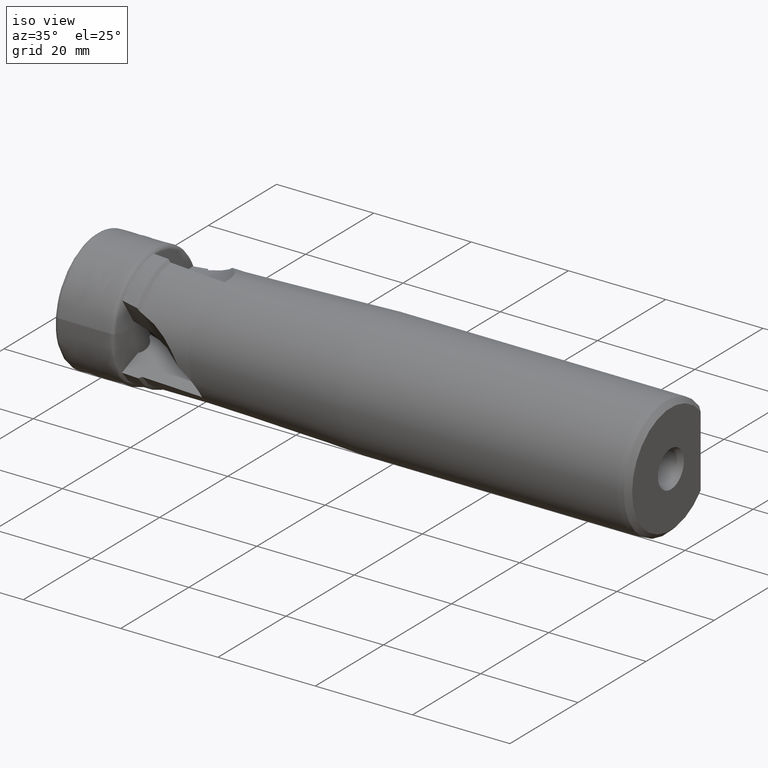
[diagram: clean part render]
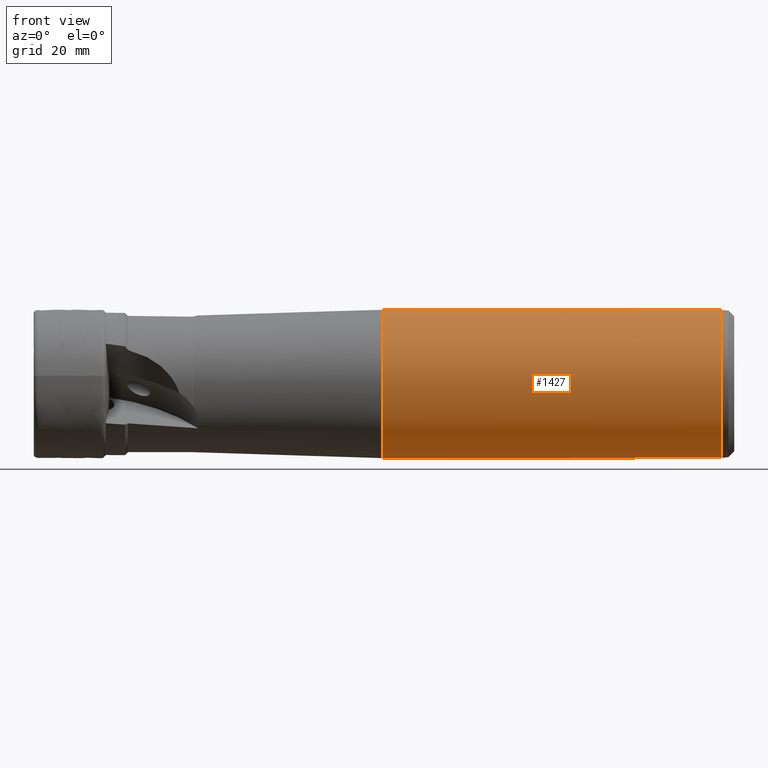
[diagram: tour spotlight — one face highlighted and labeled with its STEP entity id]
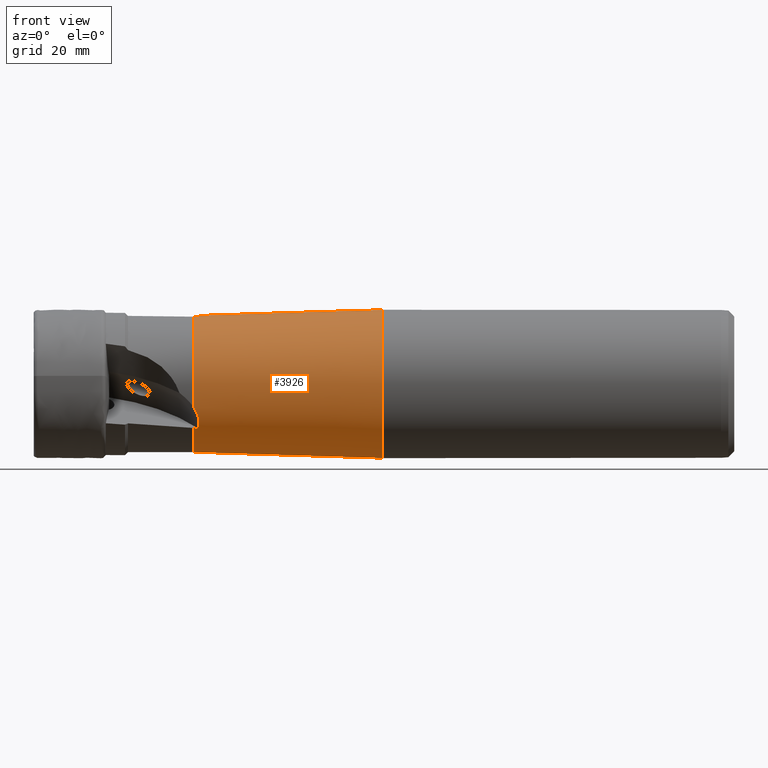
[diagram: tour spotlight — one face highlighted and labeled with its STEP entity id]
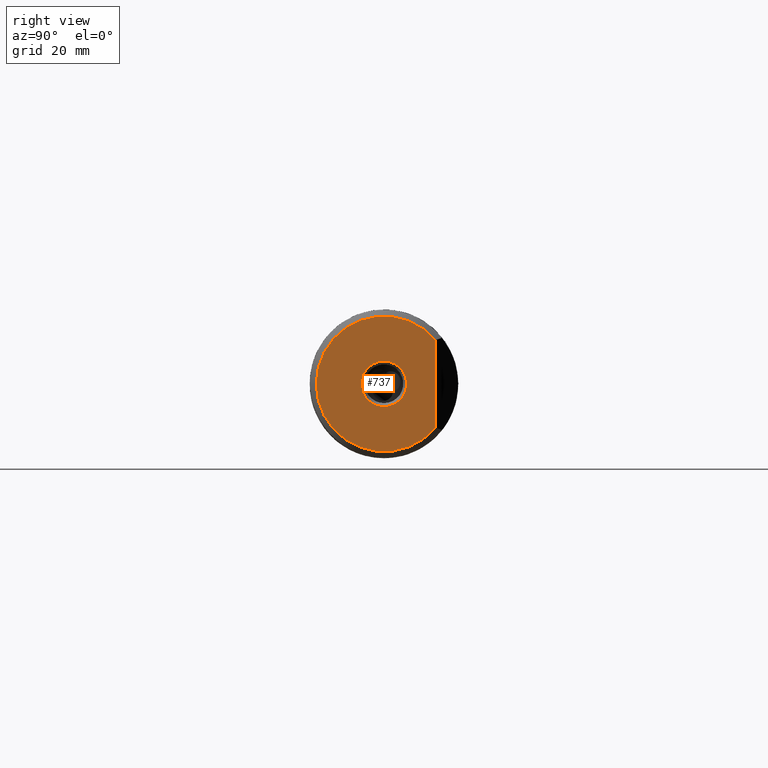
[diagram: tour spotlight — one face highlighted and labeled with its STEP entity id]
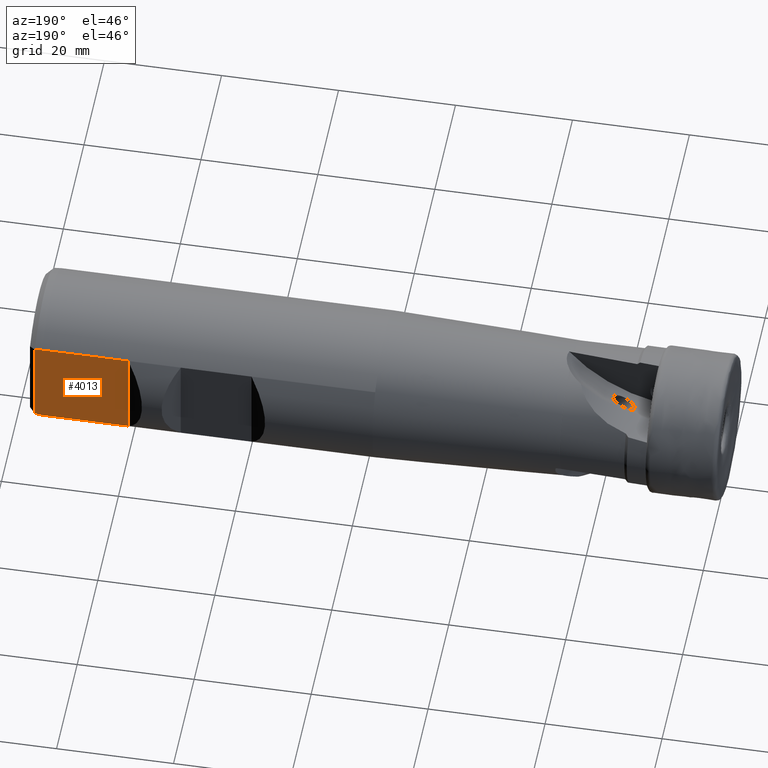
[diagram: tour spotlight — one face highlighted and labeled with its STEP entity id]
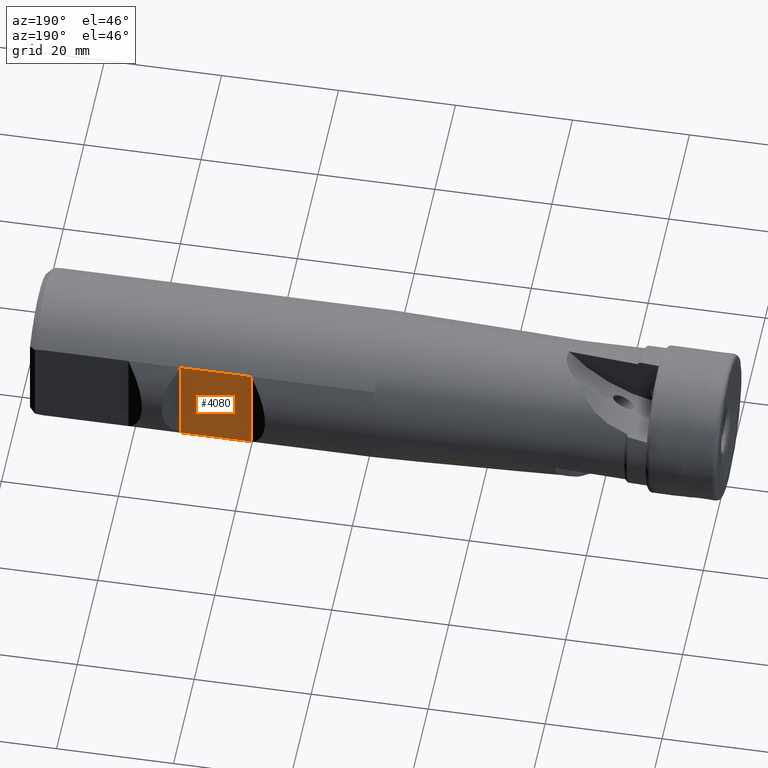
[diagram: tour spotlight — one face highlighted and labeled with its STEP entity id]
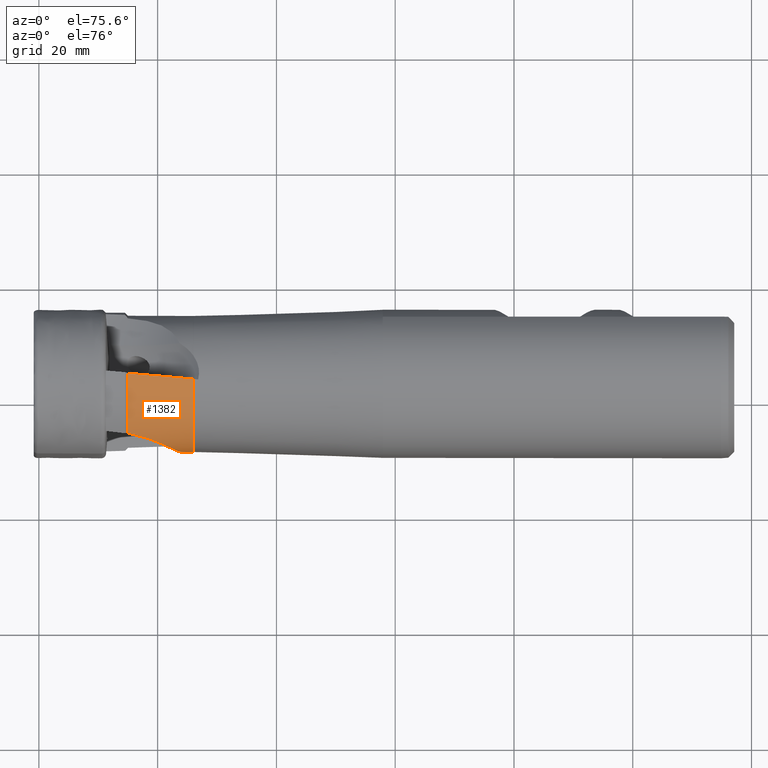
[diagram: tour spotlight — one face highlighted and labeled with its STEP entity id]
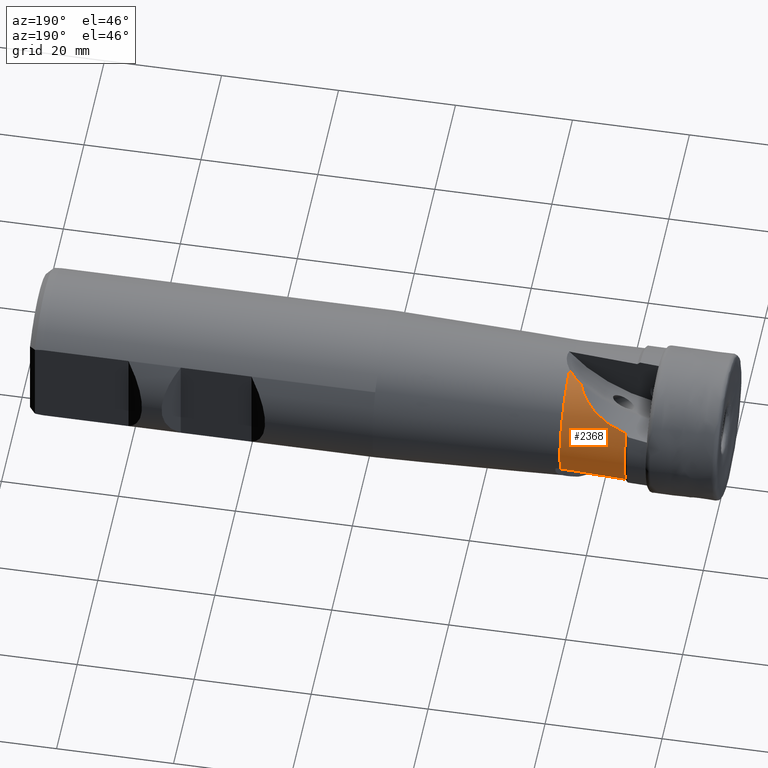
[diagram: tour spotlight — one face highlighted and labeled with its STEP entity id]
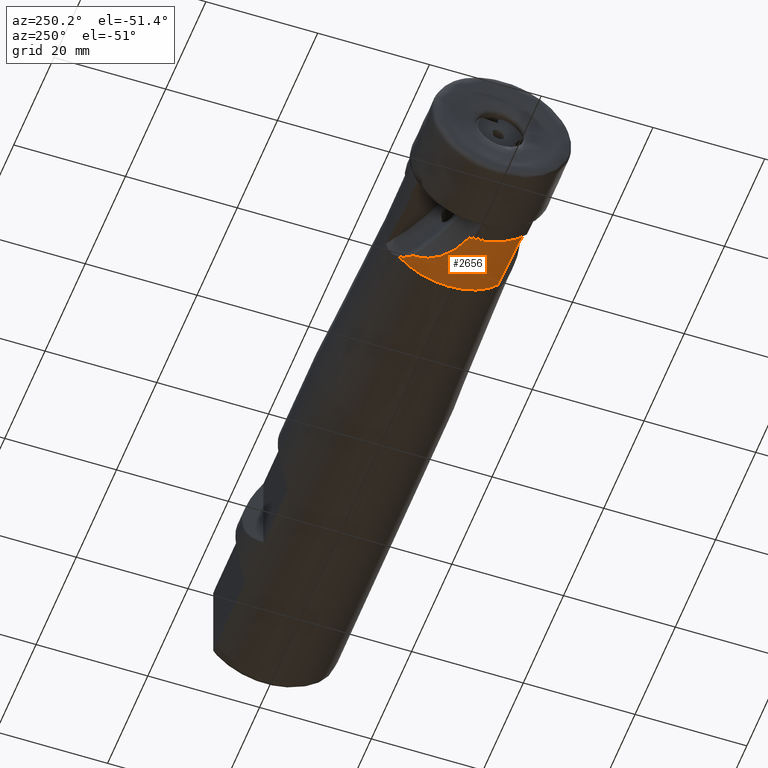
[diagram: tour spotlight — one face highlighted and labeled with its STEP entity id]
A machine part: a face-by-face anatomy tour. The part has 89 B-rep faces; the first image is the clean iso view, then the 8 largest visible faces are spotlighted one at a time (largest first), each with its STEP entity span.

Face 1 — front view, entity #1427. In plain terms, the highlighted cylindrical surface (bore or boss wall) has radius 12.5 mm, axis along (-1, -0, -0).
Definition (entity closure, byte-faithful):
#113 = VECTOR ( 'NONE', #2562, 1000.000000000000000 ) ;
#212 = EDGE_CURVE ( 'NONE', #4228, #2600, #2044, .T. ) ;
#268 = CARTESIAN_POINT ( 'NONE',  ( 75.15282131661439300, 13.59717868338558200, 3.089404912919603500 ) ) ;
#293 = CARTESIAN_POINT ( 'NONE',  ( 91.14999999999999100, 9.700000000000001100, -7.884161337770812000 ) ) ;
#339 = CYLINDRICAL_SURFACE ( 'NONE', #1195, 12.50000000000000000 ) ;
#367 = ORIENTED_EDGE ( 'NONE', *, *, #1459, .T. ) ;
#452 = EDGE_CURVE ( 'NONE', #2538, #3006, #2185, .T. ) ;
#490 = AXIS2_PLACEMENT_3D ( 'NONE', #593, #3572, #1259 ) ;
#544 = FACE_OUTER_BOUND ( 'NONE', #3835, .T. ) ;
#578 = CARTESIAN_POINT ( 'NONE',  ( 96.20282131661441800, 13.59717868338558100, 3.089404912919598200 ) ) ;
#593 = CARTESIAN_POINT ( 'NONE',  ( 114.8499999999999800, 0.0000000000000000000, 0.0000000000000000000 ) ) ;
#822 = ORIENTED_EDGE ( 'NONE', *, *, #4149, .T. ) ;
#841 = ORIENTED_EDGE ( 'NONE', *, *, #2907, .T. ) ;
#879 = CARTESIAN_POINT ( 'NONE',  ( 57.91051569680029600, 0.0000000000000000000, 0.0000000000000000000 ) ) ;
#897 = ORIENTED_EDGE ( 'NONE', *, *, #1822, .T. ) ;
#901 = CARTESIAN_POINT ( 'NONE',  ( 100.0999999999999900, 9.700000000000004600, 7.884161337770803100 ) ) ;
#1024 = CARTESIAN_POINT ( 'NONE',  ( 57.91051569680029600, 0.0000000000000000000, -12.50000000000000000 ) ) ;
#1131 = EDGE_CURVE ( 'NONE', #3006, #4005, #3567, .T. ) ;
#1195 = AXIS2_PLACEMENT_3D ( 'NONE', #1469, #2783, #2196 ) ;
#1205 = VERTEX_POINT ( 'NONE', #2316 ) ;
#1217 = DIRECTION ( 'NONE',  ( 0.0000000000000000000, 0.0000000000000000000, -1.000000000000000000 ) ) ;
#1239 = CARTESIAN_POINT ( 'NONE',  ( 75.15282131661439300, 13.59717868338558200, -3.089404912919600000 ) ) ;
#1259 = DIRECTION ( 'NONE',  ( 0.0000000000000000000, 0.0000000000000000000, 1.000000000000000000 ) ) ;
#1427 = ADVANCED_FACE ( 'NONE', ( #544, #3935, #3834 ), #339, .T. ) ;
#1445 = VERTEX_POINT ( 'NONE', #1024 ) ;
#1446 = DIRECTION ( 'NONE',  ( -1.000000000000000000, -0.0000000000000000000, -0.0000000000000000000 ) ) ;
#1459 = EDGE_CURVE ( 'NONE', #4188, #2538, #2479, .T. ) ;
#1469 = CARTESIAN_POINT ( 'NONE',  ( 0.0000000000000000000, 0.0000000000000000000, 0.0000000000000000000 ) ) ;
#1517 = CARTESIAN_POINT ( 'NONE',  ( 91.14999999999999100, 9.700000000000001100, -7.884161337770812000 ) ) ;
#1519 = VECTOR ( 'NONE', #1582, 1000.000000000000000 ) ;
#1560 = CIRCLE ( 'NONE', #3998, 12.50000000000000000 ) ;
#1582 = DIRECTION ( 'NONE',  ( 1.000000000000000000, 0.0000000000000000000, 0.0000000000000000000 ) ) ;
#1593 = CARTESIAN_POINT ( 'NONE',  ( 95.04717868338556700, 13.59717868338558100, 3.089404912919592000 ) ) ;
#1621 = ORIENTED_EDGE ( 'NONE', *, *, #452, .T. ) ;
#1738 = EDGE_CURVE ( 'NONE', #1445, #1445, #1560, .T. ) ;
#1822 = EDGE_CURVE ( 'NONE', #1205, #4228, #4165, .T. ) ;
#1827 = CARTESIAN_POINT ( 'NONE',  ( 100.0999999999999900, 9.700000000000004600, -7.884161337770803100 ) ) ;
#1862 = CARTESIAN_POINT ( 'NONE',  ( 100.0999999999999900, 9.700000000000004600, 7.884161337770803100 ) ) ;
#1883 = ORIENTED_EDGE ( 'NONE', *, *, #3033, .T. ) ;
#1898 = CARTESIAN_POINT ( 'NONE',  ( -1.051676107310938700E-015, 9.699999999999994000, -7.884161337770820800 ) ) ;
#2044 = LINE ( 'NONE', #3152, #113 ) ;
#2082 = CARTESIAN_POINT ( 'NONE',  ( 91.14999999999999100, 9.700000000000001100, 7.884161337770812000 ) ) ;
#2185 = LINE ( 'NONE', #1898, #1519 ) ;
#2196 = DIRECTION ( 'NONE',  ( 0.0000000000000000000, 0.0000000000000000000, 1.000000000000000000 ) ) ;
#2241 = CARTESIAN_POINT ( 'NONE',  ( 95.04717868338556700, 13.59717868338558100, -3.089404912919596000 ) ) ;
#2316 = CARTESIAN_POINT ( 'NONE',  ( 79.04999999999999700, 9.700000000000001100, 7.884161337770813700 ) ) ;
#2319 = EDGE_LOOP ( 'NONE', ( #2420 ) ) ;
#2376 = LINE ( 'NONE', #3169, #3249 ) ;
#2420 = ORIENTED_EDGE ( 'NONE', *, *, #1738, .T. ) ;
#2479 =( BOUNDED_CURVE ( )  B_SPLINE_CURVE ( 3, ( #901, #578, #2860, #3199 ),
 .UNSPECIFIED., .F., .T. ) 
 B_SPLINE_CURVE_WITH_KNOTS ( ( 4, 4 ),
 ( 5.600687989903614800, 6.965682624455557600 ),
 .UNSPECIFIED. ) 
 CURVE ( )  GEOMETRIC_REPRESENTATION_ITEM ( )  RATIONAL_B_SPLINE_CURVE ( ( 1.000000000000000000, 0.8506666666666667900, 0.8506666666666667900, 1.000000000000000000 ) ) 
 REPRESENTATION_ITEM ( '' )  );
#2521 = VECTOR ( 'NONE', #1446, 1000.000000000000000 ) ;
#2534 = CARTESIAN_POINT ( 'NONE',  ( 79.04999999999999700, 9.700000000000001100, 7.884161337770813700 ) ) ;
#2538 = VERTEX_POINT ( 'NONE', #1827 ) ;
#2562 = DIRECTION ( 'NONE',  ( 1.000000000000000000, 0.0000000000000000000, 0.0000000000000000000 ) ) ;
#2600 = VERTEX_POINT ( 'NONE', #1517 ) ;
#2783 = DIRECTION ( 'NONE',  ( -1.000000000000000000, -0.0000000000000000000, -0.0000000000000000000 ) ) ;
#2842 = EDGE_LOOP ( 'NONE', ( #1883, #841, #897, #3296 ) ) ;
#2860 = CARTESIAN_POINT ( 'NONE',  ( 96.20282131661441800, 13.59717868338558100, -3.089404912919592800 ) ) ;
#2870 =( BOUNDED_CURVE ( )  B_SPLINE_CURVE ( 3, ( #293, #2241, #1593, #3905 ),
 .UNSPECIFIED., .F., .F. ) 
 B_SPLINE_CURVE_WITH_KNOTS ( ( 4, 4 ),
 ( 2.459095336313821700, 3.824089970865764500 ),
 .UNSPECIFIED. ) 
 CURVE ( )  GEOMETRIC_REPRESENTATION_ITEM ( )  RATIONAL_B_SPLINE_CURVE ( ( 1.000000000000000000, 0.8506666666666667900, 0.8506666666666667900, 1.000000000000000000 ) ) 
 REPRESENTATION_ITEM ( '' )  );
#2907 = EDGE_CURVE ( 'NONE', #3404, #1205, #2376, .T. ) ;
#2957 = ORIENTED_EDGE ( 'NONE', *, *, #1131, .T. ) ;
#3006 = VERTEX_POINT ( 'NONE', #3550 ) ;
#3033 = EDGE_CURVE ( 'NONE', #2600, #3404, #2870, .T. ) ;
#3050 = CARTESIAN_POINT ( 'NONE',  ( 114.8499999999999800, 9.699999999999994000, 7.884161337770820800 ) ) ;
#3139 = CARTESIAN_POINT ( 'NONE',  ( -1.051676107310938700E-015, 9.699999999999994000, 7.884161337770820800 ) ) ;
#3152 = CARTESIAN_POINT ( 'NONE',  ( 0.0000000000000000000, 9.700000000000001100, -7.884161337770812000 ) ) ;
#3169 = CARTESIAN_POINT ( 'NONE',  ( 0.0000000000000000000, 9.700000000000001100, 7.884161337770812000 ) ) ;
#3180 = DIRECTION ( 'NONE',  ( 1.000000000000000000, 0.0000000000000000000, 0.0000000000000000000 ) ) ;
#3199 = CARTESIAN_POINT ( 'NONE',  ( 100.0999999999999900, 9.700000000000004600, -7.884161337770803100 ) ) ;
#3249 = VECTOR ( 'NONE', #4171, 1000.000000000000000 ) ;
#3296 = ORIENTED_EDGE ( 'NONE', *, *, #212, .T. ) ;
#3404 = VERTEX_POINT ( 'NONE', #2082 ) ;
#3508 = LINE ( 'NONE', #3139, #2521 ) ;
#3537 = CARTESIAN_POINT ( 'NONE',  ( 79.04999999999999700, 9.700000000000001100, -7.884161337770817300 ) ) ;
#3550 = CARTESIAN_POINT ( 'NONE',  ( 114.8499999999999800, 9.699999999999994000, -7.884161337770820800 ) ) ;
#3567 = CIRCLE ( 'NONE', #490, 12.50000000000000000 ) ;
#3572 = DIRECTION ( 'NONE',  ( -1.000000000000000000, -0.0000000000000000000, -0.0000000000000000000 ) ) ;
#3834 = FACE_OUTER_BOUND ( 'NONE', #2319, .T. ) ;
#3835 = EDGE_LOOP ( 'NONE', ( #2957, #822, #367, #1621 ) ) ;
#3905 = CARTESIAN_POINT ( 'NONE',  ( 91.14999999999999100, 9.700000000000001100, 7.884161337770812000 ) ) ;
#3935 = FACE_BOUND ( 'NONE', #2842, .T. ) ;
#3998 = AXIS2_PLACEMENT_3D ( 'NONE', #879, #3180, #1217 ) ;
#4005 = VERTEX_POINT ( 'NONE', #3050 ) ;
#4149 = EDGE_CURVE ( 'NONE', #4005, #4188, #3508, .T. ) ;
#4165 =( BOUNDED_CURVE ( )  B_SPLINE_CURVE ( 3, ( #2534, #268, #1239, #3537 ),
 .UNSPECIFIED., .F., .T. ) 
 B_SPLINE_CURVE_WITH_KNOTS ( ( 4, 4 ),
 ( 5.600687989903613900, 6.965682624455558500 ),
 .UNSPECIFIED. ) 
 CURVE ( )  GEOMETRIC_REPRESENTATION_ITEM ( )  RATIONAL_B_SPLINE_CURVE ( ( 1.000000000000000000, 0.8506666666666664600, 0.8506666666666664600, 1.000000000000000000 ) ) 
 REPRESENTATION_ITEM ( '' )  );
#4171 = DIRECTION ( 'NONE',  ( -1.000000000000000000, -0.0000000000000000000, -0.0000000000000000000 ) ) ;
#4174 = CARTESIAN_POINT ( 'NONE',  ( 79.04999999999999700, 9.700000000000001100, -7.884161337770817300 ) ) ;
#4188 = VERTEX_POINT ( 'NONE', #1862 ) ;
#4228 = VERTEX_POINT ( 'NONE', #4174 ) ;

Face 2 — front view, entity #3926. In plain terms, the highlighted conical surface has half-angle 1.796 deg.
Definition (entity closure, byte-faithful):
#64 = ORIENTED_EDGE ( 'NONE', *, *, #3452, .T. ) ;
#85 = DIRECTION ( 'NONE',  ( -1.000000000000000000, -0.0000000000000000000, -0.0000000000000000000 ) ) ;
#90 =( BOUNDED_CURVE ( )  B_SPLINE_CURVE ( 3, ( #3707, #1066, #2661, #1730 ),
 .UNSPECIFIED., .F., .T. ) 
 B_SPLINE_CURVE_WITH_KNOTS ( ( 4, 4 ),
 ( 4.517317072188324900, 4.522989198021745600 ),
 .UNSPECIFIED. ) 
 CURVE ( )  GEOMETRIC_REPRESENTATION_ITEM ( )  RATIONAL_B_SPLINE_CURVE ( ( 1.000000000000000000, 0.9999973189175079800, 0.9999973189175079800, 1.000000000000000000 ) ) 
 REPRESENTATION_ITEM ( '' )  );
#110 = CARTESIAN_POINT ( 'NONE',  ( 26.03133763206778900, 2.016279198989966200, 11.32236347895680200 ) ) ;
#217 = CARTESIAN_POINT ( 'NONE',  ( 26.03133763206779200, 8.925250677318146600, -7.252668261055815100 ) ) ;
#228 = CARTESIAN_POINT ( 'NONE',  ( 26.22889793334643500, 1.715927084992845600, 11.38214155241293600 ) ) ;
#231 = CONICAL_SURFACE ( 'NONE', #1507, 12.60000000000000000, 0.03134276350803230600 ) ;
#241 = CARTESIAN_POINT ( 'NONE',  ( 26.79620523868806700, 9.889773287261912000, -5.927111748153024000 ) ) ;
#507 = CARTESIAN_POINT ( 'NONE',  ( 26.81784455521648500, -2.102234149780903400, 11.33180065524483000 ) ) ;
#533 = AXIS2_PLACEMENT_3D ( 'NONE', #3485, #1505, #3817 ) ;
#559 = CARTESIAN_POINT ( 'NONE',  ( 26.97224604283889000, 10.39945579209078200, -4.992486297224235000 ) ) ;
#609 = CARTESIAN_POINT ( 'NONE',  ( 26.81784455521754000, -8.762510163172551700, -7.486488506035929200 ) ) ;
#683 = ORIENTED_EDGE ( 'NONE', *, *, #4200, .T. ) ;
#688 = EDGE_CURVE ( 'NONE', #3735, #3891, #2945, .T. ) ;
#692 = CARTESIAN_POINT ( 'NONE',  ( 61.09999999999998700, 0.0000000000000000000, 0.0000000000000000000 ) ) ;
#785 = CARTESIAN_POINT ( 'NONE',  ( 26.68432782035414900, -10.33113061558315600, -5.109875293251161700 ) ) ;
#793 = VERTEX_POINT ( 'NONE', #2619 ) ;
#839 = VERTEX_POINT ( 'NONE', #2276 ) ;
#848 = AXIS2_PLACEMENT_3D ( 'NONE', #2031, #85, #2351 ) ;
#868 = CARTESIAN_POINT ( 'NONE',  ( 26.68401629255890800, 0.7411293195197136100, 11.50189015463468900 ) ) ;
#878 = CARTESIAN_POINT ( 'NONE',  ( 26.90516700355722800, 10.82160732439488600, -3.988476145133527800 ) ) ;
#879 = CARTESIAN_POINT ( 'NONE',  ( 57.91051569680029600, 0.0000000000000000000, 0.0000000000000000000 ) ) ;
#917 = CARTESIAN_POINT ( 'NONE',  ( 26.29336153503508200, -8.778286922313583300, -7.442612265522385000 ) ) ;
#948 = VERTEX_POINT ( 'NONE', #110 ) ;
#1024 = CARTESIAN_POINT ( 'NONE',  ( 57.91051569680029600, 0.0000000000000000000, -12.50000000000000000 ) ) ;
#1066 = CARTESIAN_POINT ( 'NONE',  ( 26.29336153503496800, 10.90071586328684800, -3.691231812451591900 ) ) ;
#1087 = AXIS2_PLACEMENT_3D ( 'NONE', #3902, #4022, #2355 ) ;
#1098 = CARTESIAN_POINT ( 'NONE',  ( 26.22907893433583500, -10.71509711798557200, -4.205300023507242600 ) ) ;
#1116 = CARTESIAN_POINT ( 'NONE',  ( 26.93920088092640700, -9.826651468881298300, -6.039747243701240700 ) ) ;
#1199 = CARTESIAN_POINT ( 'NONE',  ( 26.93891274825394400, -0.3152119877750572100, 11.53003882657656500 ) ) ;
#1213 = ORIENTED_EDGE ( 'NONE', *, *, #1738, .F. ) ;
#1217 = DIRECTION ( 'NONE',  ( 0.0000000000000000000, 0.0000000000000000000, -1.000000000000000000 ) ) ;
#1279 = EDGE_CURVE ( 'NONE', #2225, #4009, #90, .T. ) ;
#1441 = CARTESIAN_POINT ( 'NONE',  ( 26.95535735706196700, -9.215149300425990100, -6.938473414591294700 ) ) ;
#1445 = VERTEX_POINT ( 'NONE', #1024 ) ;
#1505 = DIRECTION ( 'NONE',  ( -1.000000000000000000, -0.0000000000000000000, -0.0000000000000000000 ) ) ;
#1507 = AXIS2_PLACEMENT_3D ( 'NONE', #692, #3668, #1693 ) ;
#1535 = CARTESIAN_POINT ( 'NONE',  ( 26.95550980234951100, -1.400111561184544900, 11.44995595290762400 ) ) ;
#1560 = CIRCLE ( 'NONE', #3998, 12.50000000000000000 ) ;
#1648 = B_SPLINE_CURVE_WITH_KNOTS ( 'NONE', 3,
 ( #217, #2836, #4183, #2190, #241, #2516, #559, #2853, #878, #3179 ),
 .UNSPECIFIED., .F., .F.,
 ( 4, 2, 2, 2, 4 ),
 ( 3.650986622864814400E-007, 0.001083339516355997900, 0.002166313934049709500, 0.003249288351743420800, 0.004332262769437132000 ),
 .UNSPECIFIED. ) ;
#1693 = DIRECTION ( 'NONE',  ( 0.0000000000000000000, 0.0000000000000000000, -1.000000000000000000 ) ) ;
#1730 = CARTESIAN_POINT ( 'NONE',  ( 26.81784455521767200, 10.93019951027649800, -3.655110555956440100 ) ) ;
#1738 = EDGE_CURVE ( 'NONE', #1445, #1445, #1560, .T. ) ;
#1776 = CARTESIAN_POINT ( 'NONE',  ( 26.81784455521754000, -8.762510163172551700, -7.486488506035929200 ) ) ;
#1787 = ORIENTED_EDGE ( 'NONE', *, *, #2506, .F. ) ;
#1829 = CIRCLE ( 'NONE', #533, 11.50049114420312100 ) ;
#1856 = EDGE_CURVE ( 'NONE', #3891, #793, #1861, .T. ) ;
#1861 =( BOUNDED_CURVE ( )  B_SPLINE_CURVE ( 3, ( #2229, #917, #2571, #609 ),
 .UNSPECIFIED., .F., .F. ) 
 B_SPLINE_CURVE_WITH_KNOTS ( ( 4, 4 ),
 ( 4.517317072188322200, 4.522989198021740300 ),
 .UNSPECIFIED. ) 
 CURVE ( )  GEOMETRIC_REPRESENTATION_ITEM ( )  RATIONAL_B_SPLINE_CURVE ( ( 1.000000000000000000, 0.9999973189175079800, 0.9999973189175079800, 1.000000000000000000 ) ) 
 REPRESENTATION_ITEM ( '' )  );
#1873 = CARTESIAN_POINT ( 'NONE',  ( 26.81784455521648500, -2.102234149780903400, 11.33180065524483000 ) ) ;
#2031 = CARTESIAN_POINT ( 'NONE',  ( 26.03133763206779600, 0.0000000000000000000, 0.0000000000000000000 ) ) ;
#2045 = EDGE_CURVE ( 'NONE', #3035, #2383, #1829, .T. ) ;
#2072 = FACE_BOUND ( 'NONE', #2184, .T. ) ;
#2085 = ORIENTED_EDGE ( 'NONE', *, *, #3915, .F. ) ;
#2184 = EDGE_LOOP ( 'NONE', ( #3235, #2797, #2906, #2085, #683, #1787, #3056, #64, #2702 ) ) ;
#2190 = CARTESIAN_POINT ( 'NONE',  ( 26.68432782035414900, 9.700943635934816500, -6.223727008893782800 ) ) ;
#2225 = VERTEX_POINT ( 'NONE', #3236 ) ;
#2229 = CARTESIAN_POINT ( 'NONE',  ( 26.03133763206779600, -8.786086899809280500, -7.420645089673416600 ) ) ;
#2276 = CARTESIAN_POINT ( 'NONE',  ( 26.81784455521648500, -2.102234149780903400, 11.33180065524483000 ) ) ;
#2278 =( BOUNDED_CURVE ( )  B_SPLINE_CURVE ( 3, ( #4129, #3454, #2468, #507 ),
 .UNSPECIFIED., .F., .T. ) 
 B_SPLINE_CURVE_WITH_KNOTS ( ( 4, 4 ),
 ( 4.517317072188324000, 4.522989198021736700 ),
 .UNSPECIFIED. ) 
 CURVE ( )  GEOMETRIC_REPRESENTATION_ITEM ( )  RATIONAL_B_SPLINE_CURVE ( ( 1.000000000000000000, 0.9999973189175079800, 0.9999973189175079800, 1.000000000000000000 ) ) 
 REPRESENTATION_ITEM ( '' )  );
#2351 = DIRECTION ( 'NONE',  ( 0.0000000000000000000, 0.0000000000000000000, 1.000000000000000000 ) ) ;
#2355 = DIRECTION ( 'NONE',  ( 0.0000000000000000000, 0.0000000000000000000, 1.000000000000000000 ) ) ;
#2383 = VERTEX_POINT ( 'NONE', #2706 ) ;
#2468 = CARTESIAN_POINT ( 'NONE',  ( 26.55553121231606200, -2.079284705985527700, 11.32769350547320300 ) ) ;
#2494 = EDGE_LOOP ( 'NONE', ( #1213 ) ) ;
#2506 = EDGE_CURVE ( 'NONE', #2383, #839, #2278, .T. ) ;
#2510 = CARTESIAN_POINT ( 'NONE',  ( 26.03133763206778900, 2.016279198989966200, 11.32236347895680200 ) ) ;
#2516 = CARTESIAN_POINT ( 'NONE',  ( 26.93920088092640700, 10.23817349715112000, -5.312384521182193200 ) ) ;
#2571 = CARTESIAN_POINT ( 'NONE',  ( 26.55553121231686500, -8.770427989030881800, -7.464560129820584100 ) ) ;
#2619 = CARTESIAN_POINT ( 'NONE',  ( 26.81784455521754000, -8.762510163172551700, -7.486488506035929200 ) ) ;
#2661 = CARTESIAN_POINT ( 'NONE',  ( 26.55553121231688300, 10.91548120501475300, -3.673191406046719900 ) ) ;
#2676 = CARTESIAN_POINT ( 'NONE',  ( 26.03133763206779600, -8.786086899809280500, -7.420645089673416600 ) ) ;
#2684 = B_SPLINE_CURVE_WITH_KNOTS ( 'NONE', 3,
 ( #2510, #228, #2839, #868, #3173, #1199, #3505, #1535, #3844, #1873 ),
 .UNSPECIFIED., .F., .F.,
 ( 4, 2, 2, 2, 4 ),
 ( 3.652314020040032400E-007, 0.001082741655488306600, 0.002165118079574609200, 0.003247494503660912100, 0.004329870927747213700 ),
 .UNSPECIFIED. ) ;
#2702 = ORIENTED_EDGE ( 'NONE', *, *, #1856, .F. ) ;
#2706 = CARTESIAN_POINT ( 'NONE',  ( 26.03133763206779600, -2.033423710220739500, 11.31929699992921600 ) ) ;
#2760 = CARTESIAN_POINT ( 'NONE',  ( 26.40094587851146500, -10.60045472459129100, -4.502088298322129300 ) ) ;
#2797 = ORIENTED_EDGE ( 'NONE', *, *, #2908, .T. ) ;
#2836 = CARTESIAN_POINT ( 'NONE',  ( 26.22907893433585600, 9.123328661913843600, -7.018741244858234500 ) ) ;
#2839 = CARTESIAN_POINT ( 'NONE',  ( 26.40067571412452500, 1.401815319146835400, 11.43123124368323200 ) ) ;
#2853 = CARTESIAN_POINT ( 'NONE',  ( 26.95535735706196700, 10.69358528347873800, -4.325346661147387200 ) ) ;
#2906 = ORIENTED_EDGE ( 'NONE', *, *, #1279, .F. ) ;
#2908 = EDGE_CURVE ( 'NONE', #3735, #4009, #1648, .T. ) ;
#2945 = CIRCLE ( 'NONE', #1087, 11.50049114420312100 ) ;
#3035 = VERTEX_POINT ( 'NONE', #3233 ) ;
#3056 = ORIENTED_EDGE ( 'NONE', *, *, #2045, .F. ) ;
#3085 = CARTESIAN_POINT ( 'NONE',  ( 26.79620523868806000, -10.17413617329238700, -5.424502048652596100 ) ) ;
#3173 = CARTESIAN_POINT ( 'NONE',  ( 26.79581964166751000, 0.3906007775187372300, 11.52324425281843600 ) ) ;
#3179 = CARTESIAN_POINT ( 'NONE',  ( 26.81784455521767200, 10.93019951027649800, -3.655110555956440100 ) ) ;
#3180 = DIRECTION ( 'NONE',  ( 1.000000000000000000, 0.0000000000000000000, 0.0000000000000000000 ) ) ;
#3233 = CARTESIAN_POINT ( 'NONE',  ( 26.03133763206777500, -10.81359400315271900, -3.915032732030978100 ) ) ;
#3235 = ORIENTED_EDGE ( 'NONE', *, *, #688, .F. ) ;
#3236 = CARTESIAN_POINT ( 'NONE',  ( 26.03133763206779600, 10.88590360385398100, -3.709231630067520800 ) ) ;
#3314 = B_SPLINE_CURVE_WITH_KNOTS ( 'NONE', 3,
 ( #4084, #1098, #2760, #785, #3085, #1116, #3418, #1441, #3758, #1776 ),
 .UNSPECIFIED., .F., .F.,
 ( 4, 2, 2, 2, 4 ),
 ( 3.650986622520055100E-007, 0.001083339516355981400, 0.002166313934049710800, 0.003249288351743440300, 0.004332262769437170100 ),
 .UNSPECIFIED. ) ;
#3387 = CARTESIAN_POINT ( 'NONE',  ( 26.81784455521767200, 10.93019951027649800, -3.655110555956440100 ) ) ;
#3418 = CARTESIAN_POINT ( 'NONE',  ( 26.97224604283890400, -9.635511694454656600, -6.342752918540172800 ) ) ;
#3452 = EDGE_CURVE ( 'NONE', #3035, #793, #3314, .T. ) ;
#3454 = CARTESIAN_POINT ( 'NONE',  ( 26.29336153503451400, -2.056347831303142000, 11.32352560919357400 ) ) ;
#3485 = CARTESIAN_POINT ( 'NONE',  ( 26.03133763206779600, 0.0000000000000000000, 0.0000000000000000000 ) ) ;
#3505 = CARTESIAN_POINT ( 'NONE',  ( 26.97216874718812100, -0.6731824621138929900, 11.51610495036164700 ) ) ;
#3544 = CARTESIAN_POINT ( 'NONE',  ( 26.03133763206779200, 8.925250677318146600, -7.252668261055815100 ) ) ;
#3668 = DIRECTION ( 'NONE',  ( 1.000000000000000000, 0.0000000000000000000, 0.0000000000000000000 ) ) ;
#3707 = CARTESIAN_POINT ( 'NONE',  ( 26.03133763206779600, 10.88590360385398100, -3.709231630067520800 ) ) ;
#3735 = VERTEX_POINT ( 'NONE', #3544 ) ;
#3758 = CARTESIAN_POINT ( 'NONE',  ( 26.90516700355721700, -8.992331135027775700, -7.221710863895507900 ) ) ;
#3817 = DIRECTION ( 'NONE',  ( 0.0000000000000000000, 0.0000000000000000000, 1.000000000000000000 ) ) ;
#3821 = FACE_OUTER_BOUND ( 'NONE', #2494, .T. ) ;
#3844 = CARTESIAN_POINT ( 'NONE',  ( 26.90567676715687300, -1.756010072248108700, 11.39883167102845000 ) ) ;
#3891 = VERTEX_POINT ( 'NONE', #2676 ) ;
#3902 = CARTESIAN_POINT ( 'NONE',  ( 26.03133763206779600, 0.0000000000000000000, 0.0000000000000000000 ) ) ;
#3915 = EDGE_CURVE ( 'NONE', #948, #2225, #3922, .T. ) ;
#3922 = CIRCLE ( 'NONE', #848, 11.50049114420312100 ) ;
#3926 = ADVANCED_FACE ( 'NONE', ( #2072, #3821 ), #231, .T. ) ;
#3998 = AXIS2_PLACEMENT_3D ( 'NONE', #879, #3180, #1217 ) ;
#4009 = VERTEX_POINT ( 'NONE', #3387 ) ;
#4022 = DIRECTION ( 'NONE',  ( -1.000000000000000000, -0.0000000000000000000, -0.0000000000000000000 ) ) ;
#4084 = CARTESIAN_POINT ( 'NONE',  ( 26.03133763206777500, -10.81359400315271900, -3.915032732030978100 ) ) ;
#4129 = CARTESIAN_POINT ( 'NONE',  ( 26.03133763206779600, -2.033423710220739500, 11.31929699992921600 ) ) ;
#4183 = CARTESIAN_POINT ( 'NONE',  ( 26.40094587851147200, 9.318680668720077200, -6.767616272249896700 ) ) ;
#4200 = EDGE_CURVE ( 'NONE', #948, #839, #2684, .T. ) ;

Face 3 — right view, entity #737. In plain terms, the highlighted planar face has unit normal (-1, 0, -0).
Definition (entity closure, byte-faithful):
#16 = DIRECTION ( 'NONE',  ( -0.0000000000000000000, -0.0000000000000000000, 1.000000000000000000 ) ) ;
#345 = LINE ( 'NONE', #1624, #2855 ) ;
#407 = CARTESIAN_POINT ( 'NONE',  ( 117.0999999999999900, 11.40000000000000000, 0.0000000000000000000 ) ) ;
#524 = EDGE_CURVE ( 'NONE', #1054, #3931, #345, .T. ) ;
#570 = CARTESIAN_POINT ( 'NONE',  ( 117.0999999999999900, 0.0000000000000000000, 0.0000000000000000000 ) ) ;
#737 = ADVANCED_FACE ( 'NONE', ( #805, #4213 ), #3585, .F. ) ;
#805 = FACE_OUTER_BOUND ( 'NONE', #1158, .T. ) ;
#894 = DIRECTION ( 'NONE',  ( 0.0000000000000000000, 0.0000000000000000000, 1.000000000000000000 ) ) ;
#1054 = VERTEX_POINT ( 'NONE', #3954 ) ;
#1095 = ORIENTED_EDGE ( 'NONE', *, *, #2363, .F. ) ;
#1097 = AXIS2_PLACEMENT_3D ( 'NONE', #570, #2867, #894 ) ;
#1158 = EDGE_LOOP ( 'NONE', ( #1095, #1611 ) ) ;
#1226 = AXIS2_PLACEMENT_3D ( 'NONE', #407, #2719, #2385 ) ;
#1576 = EDGE_LOOP ( 'NONE', ( #2585 ) ) ;
#1611 = ORIENTED_EDGE ( 'NONE', *, *, #524, .T. ) ;
#1624 = CARTESIAN_POINT ( 'NONE',  ( 117.0999999999999900, 8.699999999999995700, -10.00000000000000000 ) ) ;
#1689 = CARTESIAN_POINT ( 'NONE',  ( 117.0999999999999900, 0.0000000000000000000, 3.827350269189631100 ) ) ;
#1703 = DIRECTION ( 'NONE',  ( -1.000000000000000000, -0.0000000000000000000, -0.0000000000000000000 ) ) ;
#2207 = VERTEX_POINT ( 'NONE', #1689 ) ;
#2262 = CIRCLE ( 'NONE', #1097, 3.827350269189631100 ) ;
#2357 = AXIS2_PLACEMENT_3D ( 'NONE', #3681, #1703, #4029 ) ;
#2363 = EDGE_CURVE ( 'NONE', #1054, #3931, #2531, .T. ) ;
#2385 = DIRECTION ( 'NONE',  ( -0.0000000000000000000, 0.0000000000000000000, 1.000000000000000000 ) ) ;
#2531 = CIRCLE ( 'NONE', #2357, 11.40000000000000000 ) ;
#2585 = ORIENTED_EDGE ( 'NONE', *, *, #2929, .T. ) ;
#2689 = CARTESIAN_POINT ( 'NONE',  ( 117.0999999999999900, 8.699999999999995700, 7.366817494685210300 ) ) ;
#2719 = DIRECTION ( 'NONE',  ( -1.000000000000000000, 0.0000000000000000000, -0.0000000000000000000 ) ) ;
#2855 = VECTOR ( 'NONE', #16, 1000.000000000000000 ) ;
#2867 = DIRECTION ( 'NONE',  ( -1.000000000000000000, -0.0000000000000000000, -0.0000000000000000000 ) ) ;
#2929 = EDGE_CURVE ( 'NONE', #2207, #2207, #2262, .T. ) ;
#3585 = PLANE ( 'NONE',  #1226 ) ;
#3681 = CARTESIAN_POINT ( 'NONE',  ( 117.0999999999999900, 0.0000000000000000000, 0.0000000000000000000 ) ) ;
#3931 = VERTEX_POINT ( 'NONE', #2689 ) ;
#3954 = CARTESIAN_POINT ( 'NONE',  ( 117.0999999999999900, 8.699999999999995700, -7.366817494685209400 ) ) ;
#4029 = DIRECTION ( 'NONE',  ( 0.0000000000000000000, 0.0000000000000000000, 1.000000000000000000 ) ) ;
#4213 = FACE_BOUND ( 'NONE', #1576, .T. ) ;

Face 4 — auxiliary view, entity #4013. In plain terms, the highlighted planar face has unit normal (0, -1, 0).
Definition (entity closure, byte-faithful):
#120 = DIRECTION ( 'NONE',  ( 1.084202172485504400E-016, -1.000000000000000000, 0.0000000000000000000 ) ) ;
#250 = CARTESIAN_POINT ( 'NONE',  ( 115.6833756513085400, 9.700000000000004600, 7.778138934283050300 ) ) ;
#272 = CARTESIAN_POINT ( 'NONE',  ( 114.8499999999999800, 9.699999999999994000, -7.884161337770820800 ) ) ;
#313 = ORIENTED_EDGE ( 'NONE', *, *, #1489, .F. ) ;
#428 = CARTESIAN_POINT ( 'NONE',  ( 116.0999999999999900, 9.700000000000004600, -10.00000000000000000 ) ) ;
#452 = EDGE_CURVE ( 'NONE', #2538, #3006, #2185, .T. ) ;
#484 = VERTEX_POINT ( 'NONE', #549 ) ;
#539 = LINE ( 'NONE', #2251, #2173 ) ;
#549 = CARTESIAN_POINT ( 'NONE',  ( 116.0999999999999900, 9.700000000000004600, 7.724635913753276700 ) ) ;
#653 = ORIENTED_EDGE ( 'NONE', *, *, #3088, .T. ) ;
#736 = CARTESIAN_POINT ( 'NONE',  ( 116.0999999999999900, 9.700000000000004600, -7.724635913750230300 ) ) ;
#958 = DIRECTION ( 'NONE',  ( -0.0000000000000000000, -0.0000000000000000000, 1.000000000000000000 ) ) ;
#1193 = LINE ( 'NONE', #2606, #2930 ) ;
#1220 = CARTESIAN_POINT ( 'NONE',  ( 114.8499999999999800, 9.699999999999994000, 7.884161337770820800 ) ) ;
#1434 = EDGE_CURVE ( 'NONE', #484, #4005, #4040, .T. ) ;
#1446 = DIRECTION ( 'NONE',  ( -1.000000000000000000, -0.0000000000000000000, -0.0000000000000000000 ) ) ;
#1489 = EDGE_CURVE ( 'NONE', #3006, #3975, #1720, .T. ) ;
#1519 = VECTOR ( 'NONE', #1582, 1000.000000000000000 ) ;
#1582 = DIRECTION ( 'NONE',  ( 1.000000000000000000, 0.0000000000000000000, 0.0000000000000000000 ) ) ;
#1720 = B_SPLINE_CURVE_WITH_KNOTS ( 'NONE', 3,
 ( #272, #4219, #1904, #2556 ),
 .UNSPECIFIED., .F., .F.,
 ( 4, 4 ),
 ( 0.02309770409454800800, 0.02435779603977665500 ),
 .UNSPECIFIED. ) ;
#1743 = DIRECTION ( 'NONE',  ( 1.000000000000000000, 1.084202172485504400E-016, 0.0000000000000000000 ) ) ;
#1827 = CARTESIAN_POINT ( 'NONE',  ( 100.0999999999999900, 9.700000000000004600, -7.884161337770803100 ) ) ;
#1862 = CARTESIAN_POINT ( 'NONE',  ( 100.0999999999999900, 9.700000000000004600, 7.884161337770803100 ) ) ;
#1898 = CARTESIAN_POINT ( 'NONE',  ( -1.051676107310938700E-015, 9.699999999999994000, -7.884161337770820800 ) ) ;
#1904 = CARTESIAN_POINT ( 'NONE',  ( 115.6833825353748000, 9.700000000000004600, -7.778138050229250300 ) ) ;
#2173 = VECTOR ( 'NONE', #3589, 1000.000000000000000 ) ;
#2185 = LINE ( 'NONE', #1898, #1519 ) ;
#2251 = CARTESIAN_POINT ( 'NONE',  ( 116.0999999999999900, 9.700000000000004600, -10.00000000000000000 ) ) ;
#2268 = EDGE_CURVE ( 'NONE', #3975, #484, #539, .T. ) ;
#2521 = VECTOR ( 'NONE', #1446, 1000.000000000000000 ) ;
#2523 = CARTESIAN_POINT ( 'NONE',  ( 116.0999999999999900, 9.700000000000004600, 7.724635913753276700 ) ) ;
#2538 = VERTEX_POINT ( 'NONE', #1827 ) ;
#2556 = CARTESIAN_POINT ( 'NONE',  ( 116.0999999999999900, 9.700000000000004600, -7.724635913750230300 ) ) ;
#2606 = CARTESIAN_POINT ( 'NONE',  ( 100.0999999999999900, 9.700000000000004600, -10.00000000000000000 ) ) ;
#2610 = AXIS2_PLACEMENT_3D ( 'NONE', #428, #120, #1743 ) ;
#2834 = FACE_OUTER_BOUND ( 'NONE', #3790, .T. ) ;
#2930 = VECTOR ( 'NONE', #958, 1000.000000000000000 ) ;
#3006 = VERTEX_POINT ( 'NONE', #3550 ) ;
#3050 = CARTESIAN_POINT ( 'NONE',  ( 114.8499999999999800, 9.699999999999994000, 7.884161337770820800 ) ) ;
#3088 = EDGE_CURVE ( 'NONE', #2538, #4188, #1193, .T. ) ;
#3139 = CARTESIAN_POINT ( 'NONE',  ( -1.051676107310938700E-015, 9.699999999999994000, 7.884161337770820800 ) ) ;
#3186 = CARTESIAN_POINT ( 'NONE',  ( 115.2667078385156900, 9.700000000000004600, 7.831307543858778300 ) ) ;
#3254 = ORIENTED_EDGE ( 'NONE', *, *, #2268, .F. ) ;
#3508 = LINE ( 'NONE', #3139, #2521 ) ;
#3550 = CARTESIAN_POINT ( 'NONE',  ( 114.8499999999999800, 9.699999999999994000, -7.884161337770820800 ) ) ;
#3589 = DIRECTION ( 'NONE',  ( -0.0000000000000000000, -0.0000000000000000000, 1.000000000000000000 ) ) ;
#3654 = ORIENTED_EDGE ( 'NONE', *, *, #4149, .F. ) ;
#3721 = PLANE ( 'NONE',  #2610 ) ;
#3790 = EDGE_LOOP ( 'NONE', ( #3654, #3843, #3254, #313, #4215, #653 ) ) ;
#3843 = ORIENTED_EDGE ( 'NONE', *, *, #1434, .F. ) ;
#3975 = VERTEX_POINT ( 'NONE', #736 ) ;
#4005 = VERTEX_POINT ( 'NONE', #3050 ) ;
#4013 = ADVANCED_FACE ( 'NONE', ( #2834 ), #3721, .F. ) ;
#4040 = B_SPLINE_CURVE_WITH_KNOTS ( 'NONE', 3,
 ( #2523, #250, #3186, #1220 ),
 .UNSPECIFIED., .F., .F.,
 ( 4, 4 ),
 ( 0.02194251888729409300, 0.02320234446291390100 ),
 .UNSPECIFIED. ) ;
#4149 = EDGE_CURVE ( 'NONE', #4005, #4188, #3508, .T. ) ;
#4188 = VERTEX_POINT ( 'NONE', #1862 ) ;
#4215 = ORIENTED_EDGE ( 'NONE', *, *, #452, .F. ) ;
#4219 = CARTESIAN_POINT ( 'NONE',  ( 115.2667140825173200, 9.700000000000004600, -7.831306751891013100 ) ) ;

Face 5 — auxiliary view, entity #4080. In plain terms, the highlighted planar face has unit normal (0, -1, -0).
Definition (entity closure, byte-faithful):
#113 = VECTOR ( 'NONE', #2562, 1000.000000000000000 ) ;
#212 = EDGE_CURVE ( 'NONE', #4228, #2600, #2044, .T. ) ;
#221 = CARTESIAN_POINT ( 'NONE',  ( 91.14999999999999100, 9.700000000000001100, -10.00000000000000000 ) ) ;
#380 = CARTESIAN_POINT ( 'NONE',  ( 79.04999999999999700, 9.700000000000001100, -10.00000000000000000 ) ) ;
#530 = LINE ( 'NONE', #380, #2928 ) ;
#759 = EDGE_LOOP ( 'NONE', ( #3760, #1462, #2724, #2470 ) ) ;
#795 = DIRECTION ( 'NONE',  ( 0.0000000000000000000, 0.0000000000000000000, -1.000000000000000000 ) ) ;
#838 = LINE ( 'NONE', #221, #1044 ) ;
#1044 = VECTOR ( 'NONE', #1174, 1000.000000000000000 ) ;
#1174 = DIRECTION ( 'NONE',  ( -0.0000000000000000000, -0.0000000000000000000, 1.000000000000000000 ) ) ;
#1205 = VERTEX_POINT ( 'NONE', #2316 ) ;
#1462 = ORIENTED_EDGE ( 'NONE', *, *, #2070, .F. ) ;
#1517 = CARTESIAN_POINT ( 'NONE',  ( 91.14999999999999100, 9.700000000000001100, -7.884161337770812000 ) ) ;
#1760 = FACE_OUTER_BOUND ( 'NONE', #759, .T. ) ;
#2044 = LINE ( 'NONE', #3152, #113 ) ;
#2070 = EDGE_CURVE ( 'NONE', #2600, #3404, #838, .T. ) ;
#2082 = CARTESIAN_POINT ( 'NONE',  ( 91.14999999999999100, 9.700000000000001100, 7.884161337770812000 ) ) ;
#2316 = CARTESIAN_POINT ( 'NONE',  ( 79.04999999999999700, 9.700000000000001100, 7.884161337770813700 ) ) ;
#2376 = LINE ( 'NONE', #3169, #3249 ) ;
#2429 = CARTESIAN_POINT ( 'NONE',  ( 91.14999999999999100, 9.700000000000001100, -10.00000000000000000 ) ) ;
#2470 = ORIENTED_EDGE ( 'NONE', *, *, #3911, .T. ) ;
#2562 = DIRECTION ( 'NONE',  ( 1.000000000000000000, 0.0000000000000000000, 0.0000000000000000000 ) ) ;
#2600 = VERTEX_POINT ( 'NONE', #1517 ) ;
#2724 = ORIENTED_EDGE ( 'NONE', *, *, #212, .F. ) ;
#2769 = DIRECTION ( 'NONE',  ( 0.0000000000000000000, -1.000000000000000000, -0.0000000000000000000 ) ) ;
#2907 = EDGE_CURVE ( 'NONE', #3404, #1205, #2376, .T. ) ;
#2928 = VECTOR ( 'NONE', #3335, 1000.000000000000000 ) ;
#3152 = CARTESIAN_POINT ( 'NONE',  ( 0.0000000000000000000, 9.700000000000001100, -7.884161337770812000 ) ) ;
#3169 = CARTESIAN_POINT ( 'NONE',  ( 0.0000000000000000000, 9.700000000000001100, 7.884161337770812000 ) ) ;
#3249 = VECTOR ( 'NONE', #4171, 1000.000000000000000 ) ;
#3335 = DIRECTION ( 'NONE',  ( -0.0000000000000000000, -0.0000000000000000000, 1.000000000000000000 ) ) ;
#3404 = VERTEX_POINT ( 'NONE', #2082 ) ;
#3411 = PLANE ( 'NONE',  #3729 ) ;
#3729 = AXIS2_PLACEMENT_3D ( 'NONE', #2429, #2769, #795 ) ;
#3760 = ORIENTED_EDGE ( 'NONE', *, *, #2907, .F. ) ;
#3911 = EDGE_CURVE ( 'NONE', #4228, #1205, #530, .T. ) ;
#4080 = ADVANCED_FACE ( 'NONE', ( #1760 ), #3411, .F. ) ;
#4171 = DIRECTION ( 'NONE',  ( -1.000000000000000000, -0.0000000000000000000, -0.0000000000000000000 ) ) ;
#4174 = CARTESIAN_POINT ( 'NONE',  ( 79.04999999999999700, 9.700000000000001100, -7.884161337770817300 ) ) ;
#4228 = VERTEX_POINT ( 'NONE', #4174 ) ;

Face 6 — auxiliary view, entity #1382. In plain terms, the highlighted cylindrical surface (partial cylindrical patch) has radius 11.5 mm, axis along (-1, -0, -0).
Definition (entity closure, byte-faithful):
#82 = DIRECTION ( 'NONE',  ( -1.000000000000000000, -0.0000000000000000000, -0.0000000000000000000 ) ) ;
#106 = CARTESIAN_POINT ( 'NONE',  ( 19.86359982629875300, -10.95050224017147600, 3.526210094218061200 ) ) ;
#124 = CARTESIAN_POINT ( 'NONE',  ( 22.84256878414825200, -11.50443636610722600, 0.2999040005674206100 ) ) ;
#207 = AXIS2_PLACEMENT_3D ( 'NONE', #1448, #4109, #1790 ) ;
#215 = EDGE_CURVE ( 'NONE', #1222, #596, #2408, .T. ) ;
#255 = ORIENTED_EDGE ( 'NONE', *, *, #2199, .F. ) ;
#446 = CARTESIAN_POINT ( 'NONE',  ( 19.45778878190479900, -10.85611447276787800, 3.803515578296175400 ) ) ;
#447 = CYLINDRICAL_SURFACE ( 'NONE', #207, 11.50000000000000000 ) ;
#596 = VERTEX_POINT ( 'NONE', #1917 ) ;
#661 = CARTESIAN_POINT ( 'NONE',  ( 24.74417164095874400, -11.24706722738132400, -2.407169994389801300 ) ) ;
#680 = CIRCLE ( 'NONE', #2115, 11.50000000000000000 ) ;
#721 = EDGE_CURVE ( 'NONE', #1879, #1222, #2974, .T. ) ;
#892 = ORIENTED_EDGE ( 'NONE', *, *, #721, .T. ) ;
#918 = CARTESIAN_POINT ( 'NONE',  ( 22.35551036418411300, -1.711830495201446000, 11.37649219756890600 ) ) ;
#930 = CARTESIAN_POINT ( 'NONE',  ( 23.67047079365466200, -11.40104278000693800, -1.505398129550215000 ) ) ;
#974 = CARTESIAN_POINT ( 'NONE',  ( 25.99999999999279500, -10.82962412357454000, -3.869010382784253900 ) ) ;
#1033 = CARTESIAN_POINT ( 'NONE',  ( 15.95535646858695800, -10.12936675019091500, 5.452008793924231400 ) ) ;
#1222 = VERTEX_POINT ( 'NONE', #4003 ) ;
#1269 = CARTESIAN_POINT ( 'NONE',  ( 14.99999999999985600, -9.990634440045120400, 5.695368599606845300 ) ) ;
#1297 = FACE_OUTER_BOUND ( 'NONE', #1769, .T. ) ;
#1382 = ADVANCED_FACE ( 'NONE', ( #1297 ), #447, .T. ) ;
#1396 =( BOUNDED_CURVE ( )  B_SPLINE_CURVE ( 3, ( #4224, #2234, #918, #3223 ),
 .UNSPECIFIED., .F., .T. ) 
 B_SPLINE_CURVE_WITH_KNOTS ( ( 4, 4 ),
 ( 1.663826696474498300, 1.748308150743869600 ),
 .UNSPECIFIED. ) 
 CURVE ( )  GEOMETRIC_REPRESENTATION_ITEM ( )  RATIONAL_B_SPLINE_CURVE ( ( 1.000000000000000000, 0.9994053287532196400, 0.9994053287532196400, 1.000000000000000000 ) ) 
 REPRESENTATION_ITEM ( '' )  );
#1401 = CARTESIAN_POINT ( 'NONE',  ( 15.00000000000000000, 0.0000000000000000000, 0.0000000000000000000 ) ) ;
#1442 = CARTESIAN_POINT ( 'NONE',  ( 23.50464770878490800, -11.46294972578844600, -1.036549574885009500 ) ) ;
#1448 = CARTESIAN_POINT ( 'NONE',  ( 0.0000000000000000000, 0.0000000000000000000, 0.0000000000000000000 ) ) ;
#1478 = CARTESIAN_POINT ( 'NONE',  ( 23.89388917519803400, -11.37876379767746300, -1.674126670955058800 ) ) ;
#1595 = CARTESIAN_POINT ( 'NONE',  ( 24.53704449421633200, -11.28605486281836100, -2.215755137179584700 ) ) ;
#1665 = CARTESIAN_POINT ( 'NONE',  ( 18.19245522893238800, -10.57244143781389000, 4.530197664599544500 ) ) ;
#1712 = CARTESIAN_POINT ( 'NONE',  ( 21.67662997709300800, -11.34752308785989800, 1.900462521212545700 ) ) ;
#1736 = DIRECTION ( 'NONE',  ( 0.0000000000000000000, 0.0000000000000000000, 1.000000000000000000 ) ) ;
#1765 = VERTEX_POINT ( 'NONE', #2869 ) ;
#1769 = EDGE_LOOP ( 'NONE', ( #892, #2441, #3770, #255, #3951 ) ) ;
#1790 = DIRECTION ( 'NONE',  ( 0.0000000000000000000, 0.0000000000000000000, 1.000000000000000000 ) ) ;
#1879 = VERTEX_POINT ( 'NONE', #1269 ) ;
#1917 = CARTESIAN_POINT ( 'NONE',  ( 25.99999999999279500, -10.82962412357454000, -3.869010382784253900 ) ) ;
#1925 = AXIS2_PLACEMENT_3D ( 'NONE', #2028, #82, #2349 ) ;
#1957 = CARTESIAN_POINT ( 'NONE',  ( 20.99301347740153600, -11.20742020503846500, 2.602262548580092100 ) ) ;
#2028 = CARTESIAN_POINT ( 'NONE',  ( 26.00000000000000000, 0.0000000000000000000, 0.0000000000000000000 ) ) ;
#2056 = CARTESIAN_POINT ( 'NONE',  ( 22.58180431616455400, -11.48454106715468400, 0.7189419455300378700 ) ) ;
#2115 = AXIS2_PLACEMENT_3D ( 'NONE', #1401, #3713, #1736 ) ;
#2166 = CARTESIAN_POINT ( 'NONE',  ( 18.62167682697712600, -10.66696953841225200, 4.305544456484805800 ) ) ;
#2199 = EDGE_CURVE ( 'NONE', #2705, #1765, #1396, .T. ) ;
#2234 = CARTESIAN_POINT ( 'NONE',  ( 18.68666193885010400, -1.390847849789781600, 11.42017865991521900 ) ) ;
#2332 = EDGE_CURVE ( 'NONE', #596, #1765, #3419, .T. ) ;
#2349 = DIRECTION ( 'NONE',  ( 0.0000000000000000000, 0.0000000000000000000, 1.000000000000000000 ) ) ;
#2408 = B_SPLINE_CURVE_WITH_KNOTS ( 'NONE', 3,
 ( #930, #1478, #2892, #1595, #661, #3569, #2947, #974 ),
 .UNSPECIFIED., .F., .F.,
 ( 4, 2, 2, 4 ),
 ( 0.009462044177749302400, 0.01029990138525307400, 0.01113775859275684600, 0.01281347300776439000 ),
 .UNSPECIFIED. ) ;
#2441 = ORIENTED_EDGE ( 'NONE', *, *, #215, .T. ) ;
#2705 = VERTEX_POINT ( 'NONE', #3647 ) ;
#2869 = CARTESIAN_POINT ( 'NONE',  ( 26.00000000000000000, -2.030682022673060400, 11.31929019518416600 ) ) ;
#2892 = CARTESIAN_POINT ( 'NONE',  ( 24.11219645345880000, -11.35181571032571500, -1.849563535887853000 ) ) ;
#2947 = CARTESIAN_POINT ( 'NONE',  ( 25.69288532865974500, -10.99082257148630500, -3.417804925193381300 ) ) ;
#2974 = B_SPLINE_CURVE_WITH_KNOTS ( 'NONE', 3,
 ( #3003, #1033, #3097, #1665, #2166, #446, #106, #3691, #1957, #1712, #3371, #2056, #124, #3229, #1442, #3929 ),
 .UNSPECIFIED., .F., .F.,
 ( 4, 2, 2, 2, 2, 2, 2, 4 ),
 ( 3.576224061345498000E-018, 0.002951610925240698200, 0.004427416387861045400, 0.005903221850481392900, 0.007379027313101740500, 0.008854832775722087200, 0.01033063823834243600, 0.01180644370096278200 ),
 .UNSPECIFIED. ) ;
#3003 = CARTESIAN_POINT ( 'NONE',  ( 14.99999999999985600, -9.990634440045120400, 5.695368599606845300 ) ) ;
#3097 = CARTESIAN_POINT ( 'NONE',  ( 16.87436844274672500, -10.29858425827831600, 5.136730246035051000 ) ) ;
#3223 = CARTESIAN_POINT ( 'NONE',  ( 26.00000000000000000, -2.030682022673060400, 11.31929019518416600 ) ) ;
#3229 = CARTESIAN_POINT ( 'NONE',  ( 23.30358564945831300, -11.49390179233518700, -0.5763853741385089900 ) ) ;
#3362 = EDGE_CURVE ( 'NONE', #1879, #2705, #680, .T. ) ;
#3371 = CARTESIAN_POINT ( 'NONE',  ( 21.99952129655959600, -11.40632008311789000, 1.519020475723219700 ) ) ;
#3419 = CIRCLE ( 'NONE', #1925, 11.50000000000000000 ) ;
#3569 = CARTESIAN_POINT ( 'NONE',  ( 25.33546688486206500, -11.10951835604671000, -2.998759125565756200 ) ) ;
#3647 = CARTESIAN_POINT ( 'NONE',  ( 15.00000000000000000, -1.068306723887893200, 11.45027164497401300 ) ) ;
#3691 = CARTESIAN_POINT ( 'NONE',  ( 20.62989790905159300, -11.12584300635168500, 2.926307287107961800 ) ) ;
#3713 = DIRECTION ( 'NONE',  ( -1.000000000000000000, -0.0000000000000000000, -0.0000000000000000000 ) ) ;
#3770 = ORIENTED_EDGE ( 'NONE', *, *, #2332, .T. ) ;
#3929 = CARTESIAN_POINT ( 'NONE',  ( 23.67047079365466200, -11.40104278000693800, -1.505398129550215000 ) ) ;
#3951 = ORIENTED_EDGE ( 'NONE', *, *, #3362, .F. ) ;
#4003 = CARTESIAN_POINT ( 'NONE',  ( 23.67047079365466200, -11.40104278000693800, -1.505398129550215000 ) ) ;
#4109 = DIRECTION ( 'NONE',  ( -1.000000000000000000, -0.0000000000000000000, -0.0000000000000000000 ) ) ;
#4224 = CARTESIAN_POINT ( 'NONE',  ( 15.00000000000000000, -1.068306723887893200, 11.45027164497401300 ) ) ;

Face 7 — auxiliary view, entity #2368. In plain terms, the highlighted cylindrical surface (partial cylindrical patch) has radius 11.5 mm, axis along (-1, -0, -0).
Definition (entity closure, byte-faithful):
#98 = DIRECTION ( 'NONE',  ( 0.0000000000000000000, 0.0000000000000000000, 1.000000000000000000 ) ) ;
#150 = CARTESIAN_POINT ( 'NONE',  ( 24.53556153810972200, 3.725401575837079100, 10.88144590765194200 ) ) ;
#183 = CARTESIAN_POINT ( 'NONE',  ( 19.45778878190488800, 8.721998350878280300, 7.499913130660811300 ) ) ;
#320 = CARTESIAN_POINT ( 'NONE',  ( 25.99999999998509600, 2.064150782802217400, 11.31323479584230000 ) ) ;
#350 = ORIENTED_EDGE ( 'NONE', *, *, #3237, .F. ) ;
#454 = VERTEX_POINT ( 'NONE', #1216 ) ;
#497 = CARTESIAN_POINT ( 'NONE',  ( 20.62989790905163900, 8.097177953090863400, 8.172109038464006000 ) ) ;
#513 = EDGE_CURVE ( 'NONE', #454, #3257, #2530, .T. ) ;
#515 = B_SPLINE_CURVE_WITH_KNOTS ( 'NONE', 3,
 ( #3445, #1136, #1806, #4120, #2130, #183, #2461, #497, #2795, #820, #3120, #1149, #3460, #1483, #3795, #1816 ),
 .UNSPECIFIED., .F., .F.,
 ( 4, 2, 2, 2, 2, 2, 2, 4 ),
 ( 4.249187360970369500E-018, 0.002951610925240484800, 0.004427416387860723600, 0.005903221850480963600, 0.007379027313101201900, 0.008854832775721440200, 0.01033063823834168300, 0.01180644370096192200 ),
 .UNSPECIFIED. ) ;
#574 = AXIS2_PLACEMENT_3D ( 'NONE', #702, #2985, #1023 ) ;
#651 = CARTESIAN_POINT ( 'NONE',  ( 25.99999999998509600, 2.064150782802217400, 11.31323479584230000 ) ) ;
#655 = CARTESIAN_POINT ( 'NONE',  ( 15.00000000000000000, 10.53255860990844000, -4.616839733935281100 ) ) ;
#684 = CYLINDRICAL_SURFACE ( 'NONE', #3693, 11.50000000000000000 ) ;
#702 = CARTESIAN_POINT ( 'NONE',  ( 15.00000000000000000, 0.0000000000000000000, 0.0000000000000000000 ) ) ;
#716 = CARTESIAN_POINT ( 'NONE',  ( 23.67047079365448800, 4.396808367003469400, 10.62629174189410500 ) ) ;
#745 = CARTESIAN_POINT ( 'NONE',  ( 18.68666193885010100, 10.66260973289168300, -4.320149540200127100 ) ) ;
#787 = CARTESIAN_POINT ( 'NONE',  ( 24.11135611908353500, 4.074778222339828600, 10.75549461350568100 ) ) ;
#820 = CARTESIAN_POINT ( 'NONE',  ( 21.67662997709301100, 7.319610366240269200, 8.877012003510811800 ) ) ;
#855 = ORIENTED_EDGE ( 'NONE', *, *, #513, .F. ) ;
#910 = DIRECTION ( 'NONE',  ( -1.000000000000000000, -0.0000000000000000000, -0.0000000000000000000 ) ) ;
#922 = EDGE_CURVE ( 'NONE', #1654, #2282, #1911, .T. ) ;
#1023 = DIRECTION ( 'NONE',  ( 0.0000000000000000000, 0.0000000000000000000, 1.000000000000000000 ) ) ;
#1132 = ORIENTED_EDGE ( 'NONE', *, *, #1406, .T. ) ;
#1136 = CARTESIAN_POINT ( 'NONE',  ( 15.95535646858684900, 9.786261492289449700, 6.046284532953540000 ) ) ;
#1149 = CARTESIAN_POINT ( 'NONE',  ( 22.58180431616453300, 6.364892522252633400, 9.586433342196533800 ) ) ;
#1170 = CARTESIAN_POINT ( 'NONE',  ( 24.74270176988464300, 3.540239142398695200, 10.94339150152294100 ) ) ;
#1216 = CARTESIAN_POINT ( 'NONE',  ( 15.00000000000000000, 10.53255860990844000, -4.616839733935281100 ) ) ;
#1406 = EDGE_CURVE ( 'NONE', #3613, #1654, #515, .T. ) ;
#1483 = CARTESIAN_POINT ( 'NONE',  ( 23.30358564945827000, 5.247786519793969300, 10.24220362783495400 ) ) ;
#1523 = CARTESIAN_POINT ( 'NONE',  ( 26.00000000000000000, 10.88456845579103500, -3.711626265021676500 ) ) ;
#1654 = VERTEX_POINT ( 'NONE', #2159 ) ;
#1806 = CARTESIAN_POINT ( 'NONE',  ( 16.87436844274698400, 9.597831014593369400, 6.350470467666067300 ) ) ;
#1816 = CARTESIAN_POINT ( 'NONE',  ( 23.67047079365448800, 4.396808367003469400, 10.62629174189410500 ) ) ;
#1911 = B_SPLINE_CURVE_WITH_KNOTS ( 'NONE', 3,
 ( #716, #2359, #787, #150, #1170, #3633, #3782, #651 ),
 .UNSPECIFIED., .F., .F.,
 ( 4, 2, 2, 4 ),
 ( 0.002604637633750802200, 0.003444825465903872700, 0.004285013298056944400, 0.005965388962363087100 ),
 .UNSPECIFIED. ) ;
#2047 = DIRECTION ( 'NONE',  ( -1.000000000000000000, -0.0000000000000000000, -0.0000000000000000000 ) ) ;
#2130 = CARTESIAN_POINT ( 'NONE',  ( 18.62167682697725700, 9.062195645645214600, 7.085094373417396300 ) ) ;
#2159 = CARTESIAN_POINT ( 'NONE',  ( 23.67047079365448800, 4.396808367003469400, 10.62629174189410500 ) ) ;
#2167 = EDGE_CURVE ( 'NONE', #2282, #3257, #3251, .T. ) ;
#2282 = VERTEX_POINT ( 'NONE', #320 ) ;
#2359 = CARTESIAN_POINT ( 'NONE',  ( 23.89343761720274300, 4.239863521270923900, 10.69123033266845400 ) ) ;
#2368 = ADVANCED_FACE ( 'NONE', ( #2437 ), #684, .T. ) ;
#2437 = FACE_OUTER_BOUND ( 'NONE', #3210, .T. ) ;
#2461 = CARTESIAN_POINT ( 'NONE',  ( 19.86359982629883100, 8.529038640759690500, 7.720308077077877600 ) ) ;
#2502 = CARTESIAN_POINT ( 'NONE',  ( 15.00000000000021300, 9.927651111197846500, 5.804458925199426700 ) ) ;
#2530 =( BOUNDED_CURVE ( )  B_SPLINE_CURVE ( 3, ( #655, #745, #3098, #1523 ),
 .UNSPECIFIED., .F., .T. ) 
 B_SPLINE_CURVE_WITH_KNOTS ( ( 4, 4 ),
 ( 1.663826696474498300, 1.748308150743869600 ),
 .UNSPECIFIED. ) 
 CURVE ( )  GEOMETRIC_REPRESENTATION_ITEM ( )  RATIONAL_B_SPLINE_CURVE ( ( 1.000000000000000000, 0.9994053287532196400, 0.9994053287532196400, 1.000000000000000000 ) ) 
 REPRESENTATION_ITEM ( '' )  );
#2751 = CIRCLE ( 'NONE', #574, 11.50000000000000000 ) ;
#2795 = CARTESIAN_POINT ( 'NONE',  ( 20.99301347740156800, 7.857335576906439000, 8.404779334160258100 ) ) ;
#2881 = CARTESIAN_POINT ( 'NONE',  ( 26.00000000000000000, 0.0000000000000000000, 0.0000000000000000000 ) ) ;
#2985 = DIRECTION ( 'NONE',  ( -1.000000000000000000, -0.0000000000000000000, -0.0000000000000000000 ) ) ;
#3098 = CARTESIAN_POINT ( 'NONE',  ( 22.35551036418410600, 10.78001616641608600, -4.018232175653325000 ) ) ;
#3120 = CARTESIAN_POINT ( 'NONE',  ( 21.99952129655958500, 7.018670362404020800, 9.118652717815075800 ) ) ;
#3159 = ORIENTED_EDGE ( 'NONE', *, *, #2167, .T. ) ;
#3210 = EDGE_LOOP ( 'NONE', ( #855, #350, #1132, #3785, #3159 ) ) ;
#3211 = DIRECTION ( 'NONE',  ( 0.0000000000000000000, 0.0000000000000000000, 1.000000000000000000 ) ) ;
#3237 = EDGE_CURVE ( 'NONE', #3613, #454, #2751, .T. ) ;
#3251 = CIRCLE ( 'NONE', #3457, 11.50000000000000000 ) ;
#3257 = VERTEX_POINT ( 'NONE', #3661 ) ;
#3345 = CARTESIAN_POINT ( 'NONE',  ( 0.0000000000000000000, 0.0000000000000000000, 0.0000000000000000000 ) ) ;
#3445 = CARTESIAN_POINT ( 'NONE',  ( 15.00000000000021300, 9.927651111197846500, 5.804458925199426700 ) ) ;
#3457 = AXIS2_PLACEMENT_3D ( 'NONE', #2881, #910, #3211 ) ;
#3460 = CARTESIAN_POINT ( 'NONE',  ( 22.84256878414822000, 6.011942666241665700, 9.813182148986625100 ) ) ;
#3613 = VERTEX_POINT ( 'NONE', #2502 ) ;
#3633 = CARTESIAN_POINT ( 'NONE',  ( 25.33506842495617300, 2.958285902526909300, 11.12038612112044700 ) ) ;
#3661 = CARTESIAN_POINT ( 'NONE',  ( 26.00000000000000000, 10.88456845579103500, -3.711626265021676500 ) ) ;
#3693 = AXIS2_PLACEMENT_3D ( 'NONE', #3345, #2047, #98 ) ;
#3782 = CARTESIAN_POINT ( 'NONE',  ( 25.69283398032547800, 2.535584203933977800, 11.22721963900794900 ) ) ;
#3785 = ORIENTED_EDGE ( 'NONE', *, *, #922, .T. ) ;
#3795 = CARTESIAN_POINT ( 'NONE',  ( 23.50464770878488000, 4.833796598761947100, 10.44548045227911200 ) ) ;
#4120 = CARTESIAN_POINT ( 'NONE',  ( 18.19245522893254500, 9.209486980615061200, 6.890904032870354400 ) ) ;

Face 8 — auxiliary view, entity #2656. In plain terms, the highlighted cylindrical surface (partial cylindrical patch) has radius 11.5 mm, axis along (-1, -0, -0).
Definition (entity closure, byte-faithful):
#2 = DIRECTION ( 'NONE',  ( -1.000000000000000000, -0.0000000000000000000, -0.0000000000000000000 ) ) ;
#46 = CARTESIAN_POINT ( 'NONE',  ( 16.87436844274704800, 0.9011258112540843100, -11.47322132697181700 ) ) ;
#62 = CARTESIAN_POINT ( 'NONE',  ( 23.67047079365450200, 7.162349176570421200, -8.997263710311026200 ) ) ;
#101 = CARTESIAN_POINT ( 'NONE',  ( 25.99999999999998900, 8.894057946812083100, -7.290112018257938000 ) ) ;
#170 = ORIENTED_EDGE ( 'NONE', *, *, #4250, .T. ) ;
#192 = CYLINDRICAL_SURFACE ( 'NONE', #2265, 11.50000000000000000 ) ;
#292 = CARTESIAN_POINT ( 'NONE',  ( 15.00000000000000000, 0.0000000000000000000, 0.0000000000000000000 ) ) ;
#361 = CARTESIAN_POINT ( 'NONE',  ( 18.62167682697730700, 1.803323536370165400, -11.36089681422005000 ) ) ;
#386 = CIRCLE ( 'NONE', #522, 11.50000000000000000 ) ;
#434 = ORIENTED_EDGE ( 'NONE', *, *, #3946, .T. ) ;
#522 = AXIS2_PLACEMENT_3D ( 'NONE', #292, #2569, #607 ) ;
#607 = DIRECTION ( 'NONE',  ( 0.0000000000000000000, 0.0000000000000000000, 1.000000000000000000 ) ) ;
#617 = DIRECTION ( 'NONE',  ( 0.0000000000000000000, 0.0000000000000000000, 1.000000000000000000 ) ) ;
#681 = CARTESIAN_POINT ( 'NONE',  ( 19.86359982629887700, 2.617373604906847000, -11.20254490519465700 ) ) ;
#718 = CARTESIAN_POINT ( 'NONE',  ( 23.67047079365450200, 7.162349176570421200, -8.997263710311026200 ) ) ;
#934 = CARTESIAN_POINT ( 'NONE',  ( 26.00000000000000400, -8.787451850501041100, -7.418267316235363400 ) ) ;
#1008 = CARTESIAN_POINT ( 'NONE',  ( 20.99301347740160400, 3.541673762626562200, -10.94689841841832500 ) ) ;
#1045 = CARTESIAN_POINT ( 'NONE',  ( 23.67047079365450200, 7.162349176570421200, -8.997263710311026200 ) ) ;
#1138 = CARTESIAN_POINT ( 'NONE',  ( 25.99999999999998900, 8.894057946812083100, -7.290112018257938000 ) ) ;
#1245 = VERTEX_POINT ( 'NONE', #3038 ) ;
#1272 = AXIS2_PLACEMENT_3D ( 'NONE', #3268, #1296, #3603 ) ;
#1296 = DIRECTION ( 'NONE',  ( -1.000000000000000000, -0.0000000000000000000, -0.0000000000000000000 ) ) ;
#1340 = CARTESIAN_POINT ( 'NONE',  ( 21.99952129655961000, 4.572634456530079400, -10.55947797815587200 ) ) ;
#1376 = CARTESIAN_POINT ( 'NONE',  ( 22.35551036418409900, -8.996416001449370400, -7.170734794601842500 ) ) ;
#1381 = CARTESIAN_POINT ( 'NONE',  ( 24.11219645346039200, 7.432002693714943900, -8.777809587539351800 ) ) ;
#1390 = EDGE_LOOP ( 'NONE', ( #170, #434, #3674, #2333, #1515 ) ) ;
#1515 = ORIENTED_EDGE ( 'NONE', *, *, #2615, .F. ) ;
#1563 = VERTEX_POINT ( 'NONE', #934 ) ;
#1587 = EDGE_CURVE ( 'NONE', #3570, #1563, #1979, .T. ) ;
#1670 = CARTESIAN_POINT ( 'NONE',  ( 22.84256878414823400, 5.668154856288961900, -10.01568864514540800 ) ) ;
#1707 = CARTESIAN_POINT ( 'NONE',  ( 24.74417164096265900, 7.856015259599461200, -8.400834056215277500 ) ) ;
#1923 = FACE_OUTER_BOUND ( 'NONE', #1390, .T. ) ;
#1926 = B_SPLINE_CURVE_WITH_KNOTS ( 'NONE', 3,
 ( #2958, #3974, #46, #2305, #361, #2653, #681, #2969, #1008, #3306, #1340, #3649, #1670, #3990, #2008, #62 ),
 .UNSPECIFIED., .F., .F.,
 ( 4, 2, 2, 2, 2, 2, 2, 4 ),
 ( 3.954366397011470600E-018, 0.002951610925240440600, 0.004427416387860659400, 0.005903221850480877700, 0.007379027313101096100, 0.008854832775721313600, 0.01033063823834153200, 0.01180644370096175000 ),
 .UNSPECIFIED. ) ;
#1935 = VERTEX_POINT ( 'NONE', #718 ) ;
#1936 = EDGE_CURVE ( 'NONE', #3383, #1563, #4028, .T. ) ;
#1979 = CIRCLE ( 'NONE', #1272, 11.50000000000000000 ) ;
#2008 = CARTESIAN_POINT ( 'NONE',  ( 23.50464770878487300, 6.792351960708892900, -9.291803176940510100 ) ) ;
#2052 = CARTESIAN_POINT ( 'NONE',  ( 25.69288532866652000, 8.590322720956532300, -7.660674047000656900 ) ) ;
#2265 = AXIS2_PLACEMENT_3D ( 'NONE', #2913, #2, #617 ) ;
#2305 = CARTESIAN_POINT ( 'NONE',  ( 18.19245522893260500, 1.562072581419310400, -11.39557537321943800 ) ) ;
#2333 = ORIENTED_EDGE ( 'NONE', *, *, #1936, .F. ) ;
#2569 = DIRECTION ( 'NONE',  ( -1.000000000000000000, -0.0000000000000000000, -0.0000000000000000000 ) ) ;
#2615 = EDGE_CURVE ( 'NONE', #1245, #3383, #386, .T. ) ;
#2653 = CARTESIAN_POINT ( 'NONE',  ( 19.45778878190492400, 2.331063117631114500, -11.26446168007161200 ) ) ;
#2656 = ADVANCED_FACE ( 'NONE', ( #1923 ), #192, .T. ) ;
#2913 = CARTESIAN_POINT ( 'NONE',  ( 0.0000000000000000000, 0.0000000000000000000, 0.0000000000000000000 ) ) ;
#2958 = CARTESIAN_POINT ( 'NONE',  ( 15.00000000000030000, 0.2636734001028029900, -11.49697683471925900 ) ) ;
#2969 = CARTESIAN_POINT ( 'NONE',  ( 20.62989790905167100, 3.221897845427722700, -11.04386848953726200 ) ) ;
#3011 = CARTESIAN_POINT ( 'NONE',  ( 15.00000000000000000, -9.382072762836152400, -6.650316584407693900 ) ) ;
#3017 = CARTESIAN_POINT ( 'NONE',  ( 23.89388917519879400, 7.295503240788465700, -8.891265272017449200 ) ) ;
#3038 = CARTESIAN_POINT ( 'NONE',  ( 15.00000000000030000, 0.2636734001028029900, -11.49697683471925900 ) ) ;
#3268 = CARTESIAN_POINT ( 'NONE',  ( 26.00000000000000000, 0.0000000000000000000, 0.0000000000000000000 ) ) ;
#3306 = CARTESIAN_POINT ( 'NONE',  ( 21.67662997709304300, 4.215392116775541700, -10.70553629323975300 ) ) ;
#3343 = CARTESIAN_POINT ( 'NONE',  ( 18.68666193885009000, -9.194740910348585300, -6.914598900674565800 ) ) ;
#3383 = VERTEX_POINT ( 'NONE', #4057 ) ;
#3570 = VERTEX_POINT ( 'NONE', #1138 ) ;
#3603 = DIRECTION ( 'NONE',  ( 0.0000000000000000000, 0.0000000000000000000, 1.000000000000000000 ) ) ;
#3649 = CARTESIAN_POINT ( 'NONE',  ( 22.58180431616455100, 5.298722395641333600, -10.21445554193339900 ) ) ;
#3674 = ORIENTED_EDGE ( 'NONE', *, *, #1587, .T. ) ;
#3678 = CARTESIAN_POINT ( 'NONE',  ( 26.00000000000000400, -8.787451850501041100, -7.418267316235363400 ) ) ;
#3686 = CARTESIAN_POINT ( 'NONE',  ( 24.53704449421952200, 7.712020819830476300, -8.532838922010959900 ) ) ;
#3779 = B_SPLINE_CURVE_WITH_KNOTS ( 'NONE', 3,
 ( #1045, #3017, #1381, #3686, #1707, #4033, #2052, #101 ),
 .UNSPECIFIED., .F., .F.,
 ( 4, 2, 2, 4 ),
 ( 0.009462044177749134200, 0.01029990138525621900, 0.01113775859276330300, 0.01281347300777747000 ),
 .UNSPECIFIED. ) ;
#3946 = EDGE_CURVE ( 'NONE', #1935, #3570, #3779, .T. ) ;
#3974 = CARTESIAN_POINT ( 'NONE',  ( 15.95535646858681900, 0.5437258897854657700, -11.49055406869822700 ) ) ;
#3990 = CARTESIAN_POINT ( 'NONE',  ( 23.30358564945827700, 6.413855747643998100, -9.555336360368523100 ) ) ;
#4028 =( BOUNDED_CURVE ( )  B_SPLINE_CURVE ( 3, ( #3011, #3343, #1376, #3678 ),
 .UNSPECIFIED., .F., .F. ) 
 B_SPLINE_CURVE_WITH_KNOTS ( ( 4, 4 ),
 ( 1.663826696474498300, 1.748308150743869600 ),
 .UNSPECIFIED. ) 
 CURVE ( )  GEOMETRIC_REPRESENTATION_ITEM ( )  RATIONAL_B_SPLINE_CURVE ( ( 1.000000000000000000, 0.9994053287532196400, 0.9994053287532196400, 1.000000000000000000 ) ) 
 REPRESENTATION_ITEM ( '' )  );
#4033 = CARTESIAN_POINT ( 'NONE',  ( 25.33546688486789800, 8.292263212397836400, -7.978240734198090300 ) ) ;
#4057 = CARTESIAN_POINT ( 'NONE',  ( 15.00000000000000000, -9.382072762836152400, -6.650316584407693900 ) ) ;
#4250 = EDGE_CURVE ( 'NONE', #1245, #1935, #1926, .T. ) ;